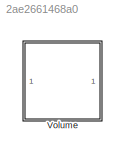
MODEL slx_2ae2661468a0
KIND library
CONFIG AbsTol = auto
CONFIG EnableMultiTasking = off
CONFIG FixedStep = auto
CONFIG MaxStep = auto
CONFIG MinStep = auto
CONFIG RelTol = 1e-3
CONFIG SampleTimeConstraint = Unconstrained
CONFIG SolverName = VariableStepAuto
CONFIG StartTime = 0.0
CONFIG StopTime = 10.0
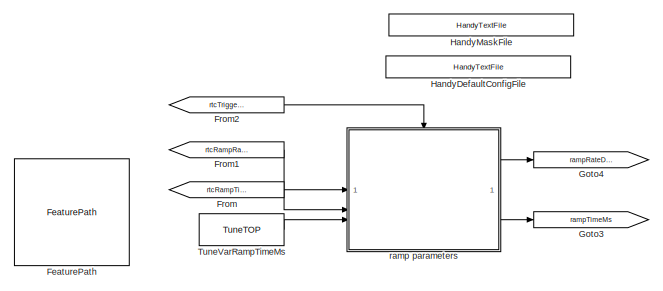
[diagram: Volume - part 1/2, top center region]
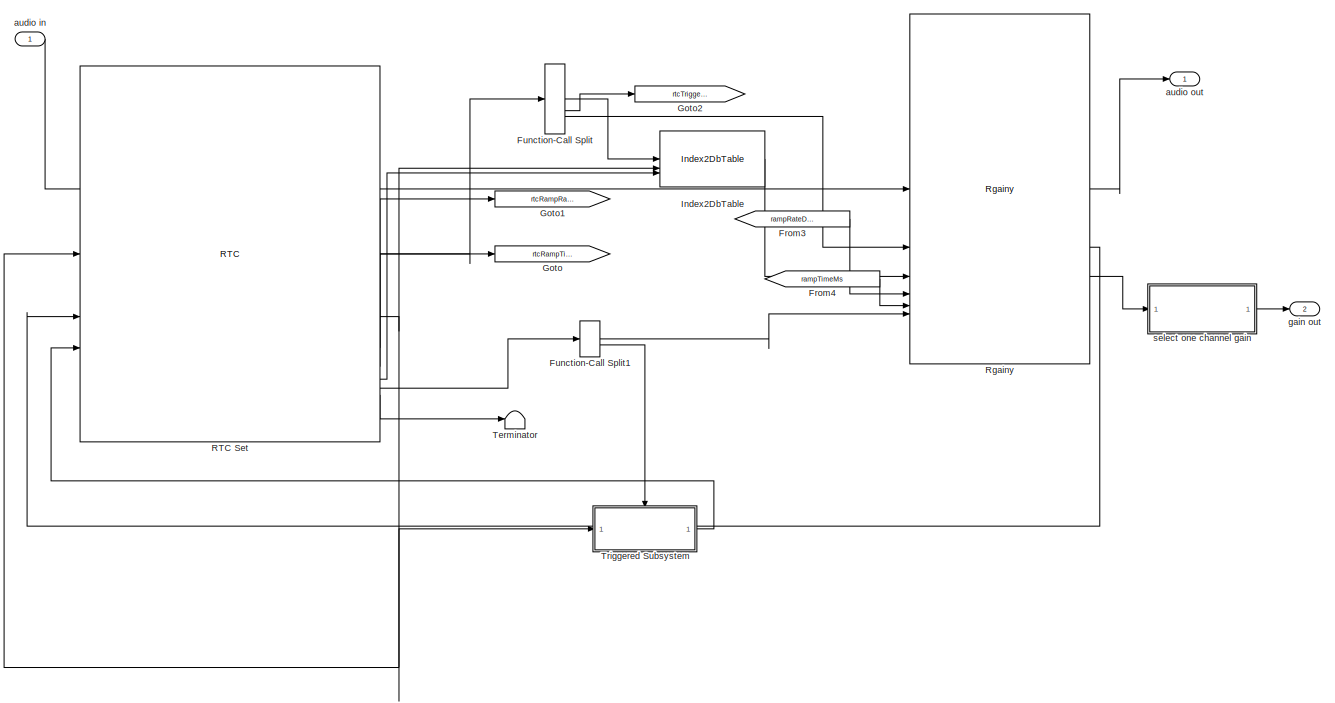
[diagram: Volume - part 2/2, full width, middle band]
BLOCK [SubSystem] Volume
  MoveFcn = VolumeMask.CB_TriggerInit(gcbh);
BLOCK [Reference] Volume/FeaturePath  REF=FeaturePath/FeaturePath
  SourceBlock = FeaturePath/FeaturePath
  SourceProductName = Bose Talaria
  SourceType = Talaria Feature Path
BLOCK [From] Volume/From
  GotoTag = rtcRampTimeMs
BLOCK [From] Volume/From1
  GotoTag = rtcRampRateDbPerSec
BLOCK [From] Volume/From2
  GotoTag = rtcTriggerRamp
BLOCK [From] Volume/From3
  GotoTag = rampRateDbPerSec
BLOCK [From] Volume/From4
  GotoTag = rampTimeMs
BLOCK [FunctionCallSplit] Volume/Function-Call Split
  IconShape = distinctive
  NumOutputPorts = 3
BLOCK [FunctionCallSplit] Volume/Function-Call Split1
  IconShape = distinctive
  NumOutputPorts = 2
  OutputPortLayout = default
BLOCK [Goto] Volume/Goto
  GotoTag = rtcRampTimeMs
BLOCK [Goto] Volume/Goto1
  GotoTag = rtcRampRateDbPerSec
BLOCK [Goto] Volume/Goto2
  GotoTag = rtcTriggerRamp
BLOCK [Goto] Volume/Goto3
  GotoTag = rampTimeMs
BLOCK [Goto] Volume/Goto4
  GotoTag = rampRateDbPerSec
BLOCK [Reference] Volume/HandyDefaultConfigFile  REF=HandyTextFile/HandyTextFile
  SourceBlock = HandyTextFile/HandyTextFile
  SourceProductName = Bose Talaria
  SourceType = Talaria Handy Text File
BLOCK [Reference] Volume/HandyMaskFile  REF=HandyTextFile/HandyTextFile
  SourceBlock = HandyTextFile/HandyTextFile
  SourceProductName = Bose Talaria
  SourceType = Talaria Handy Text File
BLOCK [Reference] Volume/Index2DbTable  REF=Index2DbTableBtc/Index2DbTable
  SourceBlock = Index2DbTableBtc/Index2DbTable
  SourceType = Blocklib Index2DbTable
BLOCK [Reference] Volume/RTC Set  REF=RTC/RTC
  Description = Sets new target volume.\nProvide the target volume as 8 bit index value to be mapped through a tunable VolumeTable.\n \nTo use slope-based ramping:\n----------------------------------\nWhen db_per_second has a non-zero value,ramp_milliseconds is ignored and db_per_second controls the ramp.\n \nTo use time-based ramping:\n----------------------------------\nThe value of db_per_second must be zero for ramp m...<+40ch>
  SourceBlock = RTC/RTC
  SourceProductName = Bose Talaria
  SourceType = Talaria RTC Receive
BLOCK [Reference] Volume/Rgainy  REF=RgainyBtc/Rgainy
  SourceBlock = RgainyBtc/Rgainy
  SourceType = Blocklib Rgainy
BLOCK [Terminator] Volume/Terminator
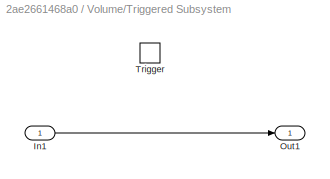
BLOCK [SubSystem] Volume/Triggered Subsystem
  TreatAsAtomicUnit = on
BLOCK [Inport] Volume/Triggered Subsystem/In1
BLOCK [Outport] Volume/Triggered Subsystem/Out1
BLOCK [TriggerPort] Volume/Triggered Subsystem/Trigger
  StatesWhenEnabling = held
  TriggerType = function-call
  VariantControl = Variant
BLOCK [Reference] Volume/TuneVarRampTimeMs  REF=TuneVar/TuneTOP
  SourceBlock = TuneVar/TuneTOP
  SourceProductName = Bose Talaria
  SourceType = Talaria Trivial Tune TOP
BLOCK [Inport] Volume/audio in
BLOCK [Outport] Volume/audio out
  VectorParamsAs1DForOutWhenUnconnected = off
BLOCK [Outport] Volume/gain out
  Port = 2
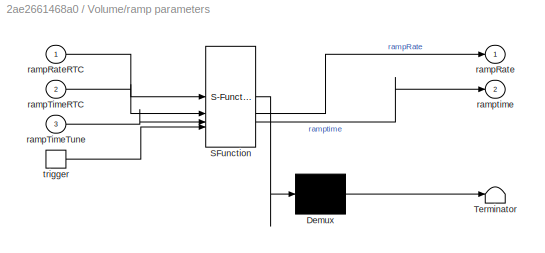
BLOCK [SubSystem] Volume/ramp parameters
  ErrorFcn = Stateflow.Translate.translate
  PermitHierarchicalResolution = ExplicitOnly
  RTWSystemCode = Reusable function
  SFBlockType = MATLAB Function
  TreatAsAtomicUnit = on
BLOCK [Demux] Volume/ramp parameters/ Demux 
  Outputs = 1
BLOCK [S-Function] Volume/ramp parameters/ SFunction 
  EnableBusSupport = off
  FunctionName = sf_sfun
  Parameters = rampRateBounds,rampTimeBounds
  PortCounts = [4 3]
  SFcnIsStateOwnerBlock = off
  SFunctionDeploymentMode = off
  Tag = Stateflow S-Function 3
BLOCK [Terminator] Volume/ramp parameters/ Terminator 
BLOCK [Outport] Volume/ramp parameters/rampRate
  VectorParamsAs1DForOutWhenUnconnected = off
BLOCK [Inport] Volume/ramp parameters/rampRateRTC
BLOCK [Inport] Volume/ramp parameters/rampTimeRTC
  Port = 2
BLOCK [Inport] Volume/ramp parameters/rampTimeTune
  Port = 3
BLOCK [Outport] Volume/ramp parameters/ramptime
  Port = 2
  VectorParamsAs1DForOutWhenUnconnected = off
BLOCK [TriggerPort] Volume/ramp parameters/trigger
  ShowOutputPort = on
  StatesWhenEnabling = held
  TriggerType = function-call
  VariantControl = Variant
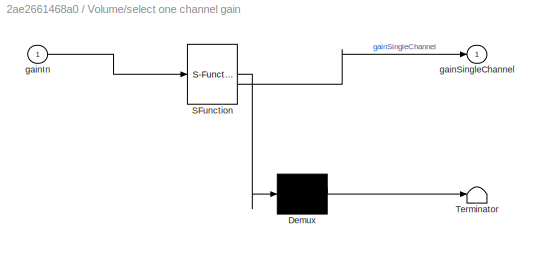
BLOCK [SubSystem] Volume/select one channel gain
  ErrorFcn = Stateflow.Translate.translate
  PermitHierarchicalResolution = ExplicitOnly
  SFBlockType = MATLAB Function
  TreatAsAtomicUnit = on
BLOCK [Demux] Volume/select one channel gain/ Demux 
  Outputs = 1
BLOCK [S-Function] Volume/select one channel gain/ SFunction 
  EnableBusSupport = off
  FunctionName = sf_sfun
  PortCounts = [1 2]
  SFcnIsStateOwnerBlock = off
  SFunctionDeploymentMode = off
  Tag = Stateflow S-Function 5
BLOCK [Terminator] Volume/select one channel gain/ Terminator 
BLOCK [Inport] Volume/select one channel gain/gainIn
BLOCK [Outport] Volume/select one channel gain/gainSingleChannel
CHART Volume/ramp parameters states=1 transitions=1
  STATE_LABEL 'eML_blk_kernel()'
  STATE_LABEL 'SCRIPT:\nfunction [rampRate, ramptime] = get_ramp_parameters(...\n    rampRateRTC, rampTimeRTC, rampTimeTune,... % inputs\n    rampTimeBounds, rampRateBounds) % parameters\n\n% Ramp time and rate are provided to the block through RTC messages. However \n% in case neither of them are provided, the block will use the default ramp \n% time given in the tune variables.\n\n    ramptime = single(rampTimeTune);\n ...<+376ch>'
CHART Volume/select one channel gain states=1 transitions=1
  STATE_LABEL 'eML_blk_kernel()'
  STATE_LABEL 'SCRIPT:\nfunction gainSingleChannel = fcn(gainIn)\n% Rgainy outputs gains of all channels. In the entertainment path, we only\n% have one ramper meaning that the same gain gets applied to all channels.\n% The following code extracts the gain of just the first channel as output.\n    gainSingleChannel = squeeze(gainIn(:,1,:));\n'
CHART  states=0 transitions=0
CHART  states=0 transitions=0
